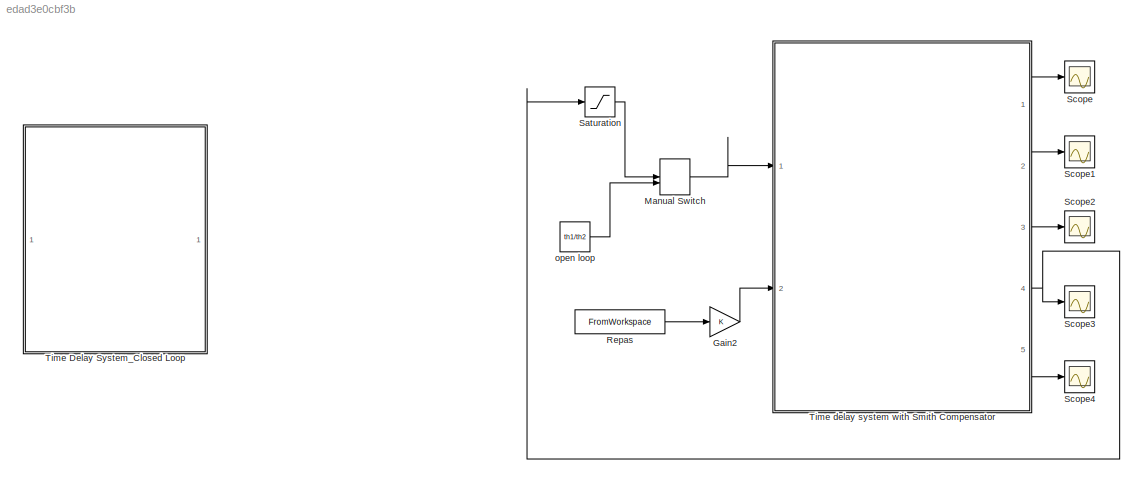
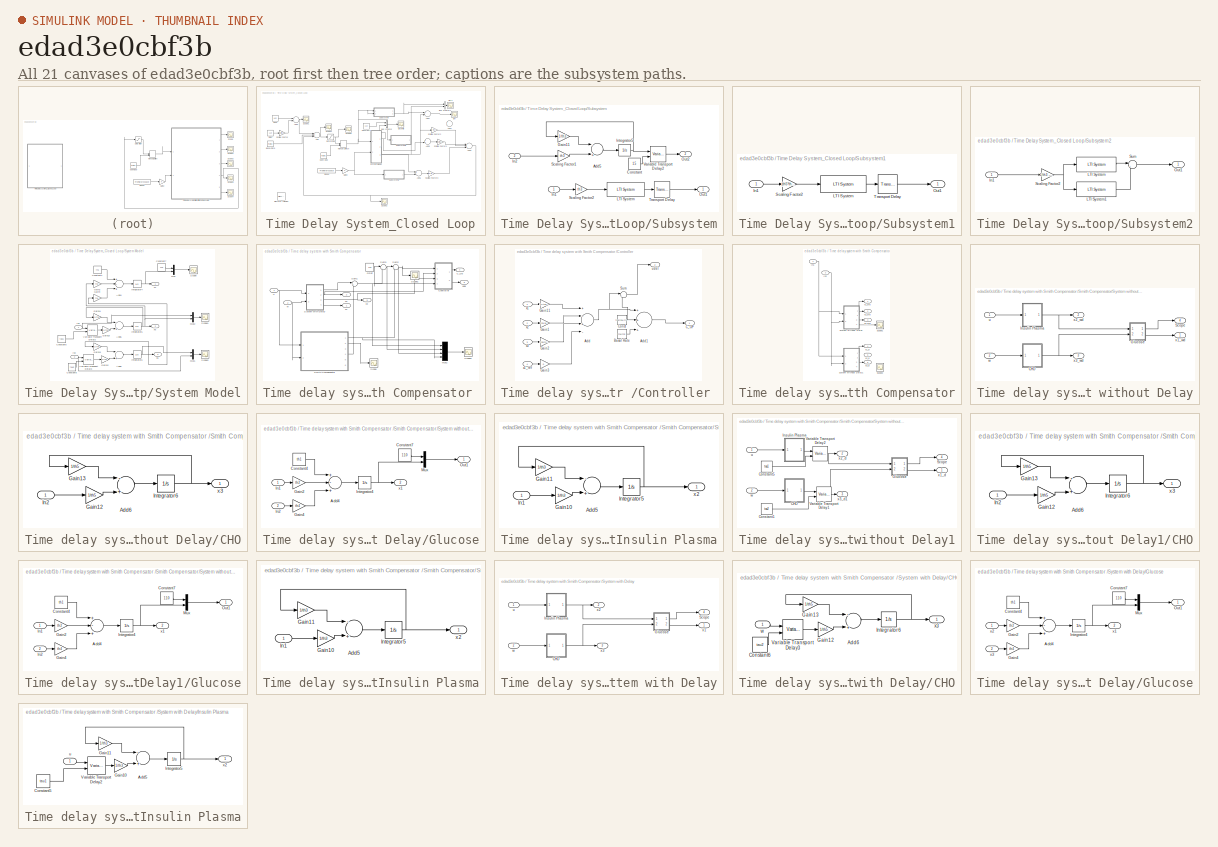
[diagram: thumbnail index - all 21 canvases of the model, root first then tree order]
MODEL slx_edad3e0cbf3b
KIND model
CONFIG AbsTol = auto
CONFIG EnableMultiTasking = off
CONFIG FixedStep = auto
CONFIG MaxStep = auto
CONFIG MinStep = auto
CONFIG RelTol = 1e-3
CONFIG SampleTimeConstraint = Unconstrained
CONFIG Solver = VariableStepAuto
CONFIG SolverName = VariableStepAuto
CONFIG StartTime = 0.0
CONFIG StopTime = 500
BLOCK [Gain] Gain2
  OutDataTypeStr = Inherit: Inherit via internal rule
  ParamDataTypeStr = Inherit: Inherit via internal rule
  SaturateOnIntegerOverflow = off
BLOCK [ManualSwitch] Manual Switch
BLOCK [FromWorkspace] Repas
  SampleTime = 0
  VariableName = [temps'  repas']
  ZeroCross = on
BLOCK [Saturate] Saturation
  InputPortMap = u0
  LowerLimit = 0
  Ports = [1, 1]
  UpperLimit = 2
BLOCK [Scope] Scope
  Floating = off
  NumInputPorts = 1
  Ports = [1]
  ScopeSpecificationString = Simulink.scopes.TimeScopeBlockCfg('CurrentConfiguration', extmgr.ConfigurationSet(extmgr.Configuration('Core','General UI',true),extmgr.Configuration('Core','Source UI',true),extmgr.Configuration('Sources','WiredSimulink',true,'DataLoggingVariableName','ScopeData4'),extmgr.Configuration('Visuals','Time Domain',true,'SerializedDisplays',{struct('MinYLimReal','97.19972','MaxYLimReal','225.20252','YL...<+1506ch>
BLOCK [Scope] Scope1
  Floating = off
  NumInputPorts = 1
  Ports = [1]
  ScopeSpecificationString = Simulink.scopes.TimeScopeBlockCfg('CurrentConfiguration', extmgr.ConfigurationSet(extmgr.Configuration('Core','General UI',true),extmgr.Configuration('Core','Source UI',true),extmgr.Configuration('Sources','WiredSimulink',true,'DataLoggingVariableName','ScopeData5'),extmgr.Configuration('Visuals','Time Domain',true,'SerializedDisplays',{struct('MinYLimReal','0.00904','MaxYLimReal','0.05105','YLabe...<+1400ch>
BLOCK [Scope] Scope2
  Floating = off
  NumInputPorts = 1
  Ports = [1]
  ScopeSpecificationString = Simulink.scopes.TimeScopeBlockCfg('CurrentConfiguration', extmgr.ConfigurationSet(extmgr.Configuration('Core','General UI',true),extmgr.Configuration('Core','Source UI',true),extmgr.Configuration('Sources','WiredSimulink',true,'DataLoggingVariableName','ScopeData6'),extmgr.Configuration('Visuals','Time Domain',true,'SerializedDisplays',{struct('MinYLimReal','-0.15474','MaxYLimReal','1.39269','YLab...<+1402ch>
BLOCK [Scope] Scope3
  Floating = off
  NumInputPorts = 1
  Ports = [1]
  ScopeSpecificationString = Simulink.scopes.TimeScopeBlockCfg('CurrentConfiguration', extmgr.ConfigurationSet(extmgr.Configuration('Core','General UI',true),extmgr.Configuration('Core','Source UI',true),extmgr.Configuration('Sources','WiredSimulink',true,'DataLoggingVariableName','ScopeData7'),extmgr.Configuration('Visuals','Time Domain',true,'SerializedDisplays',{struct('MinYLimReal','-0.09345','MaxYLimReal','0.17224','YLab...<+1446ch>
BLOCK [Scope] Scope4
  Floating = off
  NumInputPorts = 1
  Ports = [1]
  ScopeSpecificationString = Simulink.scopes.TimeScopeBlockCfg('CurrentConfiguration', extmgr.ConfigurationSet(extmgr.Configuration('Core','General UI',true),extmgr.Configuration('Core','Source UI',true),extmgr.Configuration('Sources','WiredSimulink',true,'DataLoggingVariableName','ScopeData8'),extmgr.Configuration('Visuals','Time Domain',true,'SerializedDisplays',{struct('MinYLimReal','-0.11045','MaxYLimReal','0.15524','YLab...<+1473ch>
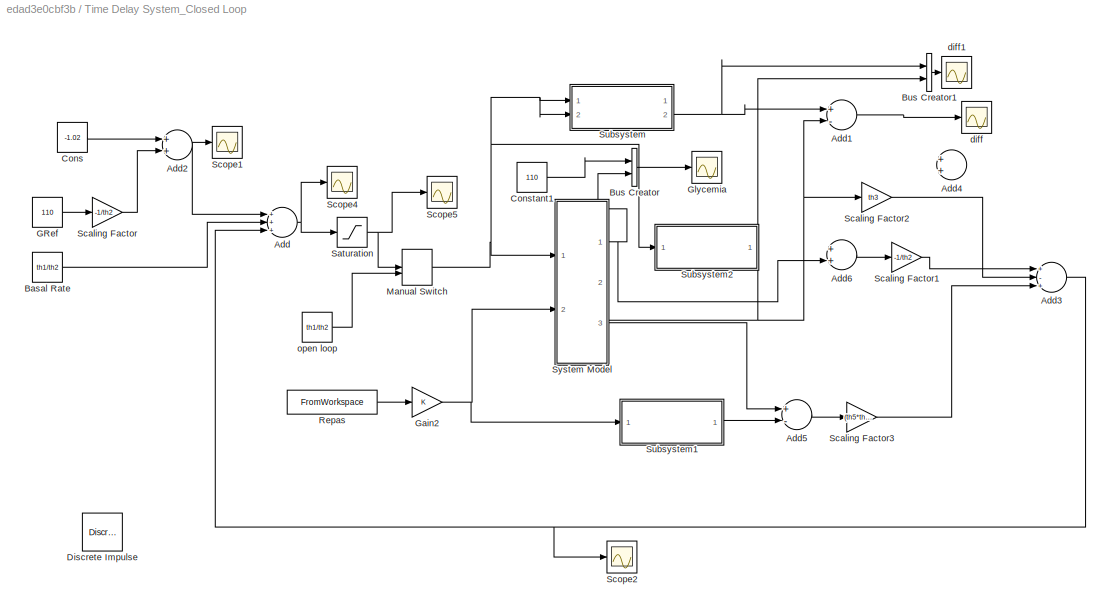
BLOCK [SubSystem] Time Delay System_Closed Loop
  Ports = []
  RequestExecContextInheritance = off
BLOCK [Sum] Time Delay System_Closed Loop/Add
  InputSameDT = off
  Inputs = +++
  OutDataTypeStr = Inherit: Inherit via internal rule
  Ports = [3, 1]
  SaturateOnIntegerOverflow = off
BLOCK [Sum] Time Delay System_Closed Loop/Add1
  InputSameDT = off
  Inputs = +-
  OutDataTypeStr = Inherit: Inherit via internal rule
  Ports = [2, 1]
  SaturateOnIntegerOverflow = off
BLOCK [Sum] Time Delay System_Closed Loop/Add2
  InputSameDT = off
  OutDataTypeStr = Inherit: Inherit via internal rule
  Ports = [2, 1]
  SaturateOnIntegerOverflow = off
BLOCK [Sum] Time Delay System_Closed Loop/Add3
  InputSameDT = off
  Inputs = +-+
  OutDataTypeStr = Inherit: Inherit via internal rule
  Ports = [3, 1]
  SaturateOnIntegerOverflow = off
BLOCK [Sum] Time Delay System_Closed Loop/Add4
  InputSameDT = off
  OutDataTypeStr = Inherit: Inherit via internal rule
  Ports = [2, 1]
  SaturateOnIntegerOverflow = off
BLOCK [Sum] Time Delay System_Closed Loop/Add5
  InputSameDT = off
  Inputs = +-
  OutDataTypeStr = Inherit: Inherit via internal rule
  Ports = [2, 1]
  SaturateOnIntegerOverflow = off
BLOCK [Sum] Time Delay System_Closed Loop/Add6
  InputSameDT = off
  OutDataTypeStr = Inherit: Inherit via internal rule
  Ports = [2, 1]
  SaturateOnIntegerOverflow = off
BLOCK [Constant] Time Delay System_Closed Loop/Basal Rate
  Value = th1/th2
  VectorParams1D = off
BLOCK [BusCreator] Time Delay System_Closed Loop/Bus Creator
  DisplayOption = bar
  InheritFromInputs = on
  Inputs = 2
  Ports = [2, 1]
BLOCK [BusCreator] Time Delay System_Closed Loop/Bus Creator1
  DisplayOption = bar
  InheritFromInputs = on
  Inputs = 2
  Ports = [2, 1]
BLOCK [Constant] Time Delay System_Closed Loop/Cons
  Value = -1.02
  VectorParams1D = off
BLOCK [Constant] Time Delay System_Closed Loop/Constant1
  Value = 110
BLOCK [Reference] Time Delay System_Closed Loop/Discrete Impulse  REF=dspsrcs4/Discrete 
Impulse
  Ports = [0, 1]
  SourceBlock = dspsrcs4/Discrete \nImpulse
  SourceProductBaseCode = DS
  SourceProductName = DSP System Toolbox
  SourceType = Discrete Impulse
BLOCK [Constant] Time Delay System_Closed Loop/GRef
  Value = 110
BLOCK [Gain] Time Delay System_Closed Loop/Gain2
  OutDataTypeStr = Inherit: Inherit via internal rule
  ParamDataTypeStr = Inherit: Inherit via internal rule
  SaturateOnIntegerOverflow = off
BLOCK [Scope] Time Delay System_Closed Loop/Glycemia
  Floating = off
  NumInputPorts = 1
  Ports = [1]
  ScopeSpecificationString = Simulink.scopes.TimeScopeBlockCfg('CurrentConfiguration', extmgr.ConfigurationSet(extmgr.Configuration('Core','General UI',true),extmgr.Configuration('Core','Source UI',true),extmgr.Configuration('Sources','WiredSimulink',true,'DataLoggingVariableName','ScopeData1'),extmgr.Configuration('Visuals','Time Domain',true,'SerializedDisplays',{struct('MinYLimReal','42.62347','MaxYLimReal','716.38879','YL...<+1618ch>
BLOCK [ManualSwitch] Time Delay System_Closed Loop/Manual Switch
BLOCK [FromWorkspace] Time Delay System_Closed Loop/Repas
  SampleTime = 0
  VariableName = [temps'  repas']
  ZeroCross = on
BLOCK [Saturate] Time Delay System_Closed Loop/Saturation
  InputPortMap = u0
  LowerLimit = 0
  Ports = [1, 1]
  UpperLimit = 2
BLOCK [Gain] Time Delay System_Closed Loop/Scaling Factor
  Gain = -1/th2
  OutDataTypeStr = Inherit: Inherit via internal rule
  ParamDataTypeStr = Inherit: Inherit via internal rule
  SaturateOnIntegerOverflow = off
BLOCK [Gain] Time Delay System_Closed Loop/Scaling Factor1
  Gain = -1/th2
  OutDataTypeStr = Inherit: Inherit via internal rule
  ParamDataTypeStr = Inherit: Inherit via internal rule
  SaturateOnIntegerOverflow = off
BLOCK [Gain] Time Delay System_Closed Loop/Scaling Factor2
  Gain = th3
  OutDataTypeStr = Inherit: Inherit via internal rule
  ParamDataTypeStr = Inherit: Inherit via internal rule
  SaturateOnIntegerOverflow = off
BLOCK [Gain] Time Delay System_Closed Loop/Scaling Factor3
  Gain = (th5*th4)/(th2)
  OutDataTypeStr = Inherit: Inherit via internal rule
  ParamDataTypeStr = Inherit: Inherit via internal rule
  SaturateOnIntegerOverflow = off
BLOCK [Scope] Time Delay System_Closed Loop/Scope1
  Floating = off
  NumInputPorts = 1
  Ports = [1]
  ScopeSpecificationString = Simulink.scopes.TimeScopeBlockCfg('CurrentConfiguration', extmgr.ConfigurationSet(extmgr.Configuration('Core','General UI',true),extmgr.Configuration('Core','Source UI',true),extmgr.Configuration('Sources','WiredSimulink',true,'DataLoggingVariableName','ScopeData1'),extmgr.Configuration('Visuals','Time Domain',true,'SerializedDisplays',{struct('MinYLimReal','-4.22','MaxYLimReal','-2.22','YLabelRea...<+1501ch>
BLOCK [Scope] Time Delay System_Closed Loop/Scope2
  Floating = off
  NumInputPorts = 1
  Ports = [1]
  ScopeSpecificationString = Simulink.scopes.TimeScopeBlockCfg('CurrentConfiguration', extmgr.ConfigurationSet(extmgr.Configuration('Core','General UI',true),extmgr.Configuration('Core','Source UI',true),extmgr.Configuration('Sources','WiredSimulink',true,'DataLoggingVariableName','ScopeData7'),extmgr.Configuration('Visuals','Time Domain',true,'SerializedDisplays',{struct('MinYLimReal','-14.39704','MaxYLimReal','-0.23157','YL...<+1484ch>
BLOCK [Scope] Time Delay System_Closed Loop/Scope4
  Floating = off
  NumInputPorts = 1
  Ports = [1]
  ScopeSpecificationString = Simulink.scopes.TimeScopeBlockCfg('CurrentConfiguration', extmgr.ConfigurationSet(extmgr.Configuration('Core','General UI',true),extmgr.Configuration('Core','Source UI',true),extmgr.Configuration('Sources','WiredSimulink',true,'DataLoggingVariableName','ScopeData2'),extmgr.Configuration('Visuals','Time Domain',true,'SerializedDisplays',{struct('MinYLimReal','-2.31544','MaxYLimReal','0.609','YLabel...<+1429ch>
BLOCK [Scope] Time Delay System_Closed Loop/Scope5
  Floating = off
  NumInputPorts = 1
  Ports = [1]
  ScopeSpecificationString = Simulink.scopes.TimeScopeBlockCfg('CurrentConfiguration', extmgr.ConfigurationSet(extmgr.Configuration('Core','General UI',true),extmgr.Configuration('Core','Source UI',true),extmgr.Configuration('Sources','WiredSimulink',true,'DataLoggingVariableName','ScopeData3'),extmgr.Configuration('Visuals','Time Domain',true,'SerializedDisplays',{struct('MinYLimReal','0.00699','MaxYLimReal','0.02699','YLabe...<+1438ch>
BLOCK [SubSystem] Time Delay System_Closed Loop/Subsystem
  Ports = [2, 2]
  RequestExecContextInheritance = off
BLOCK [Sum] Time Delay System_Closed Loop/Subsystem/Add5
  InputSameDT = off
  Inputs = -+
  OutDataTypeStr = Inherit: Inherit via internal rule
  Ports = [2, 1]
  SaturateOnIntegerOverflow = off
BLOCK [Constant] Time Delay System_Closed Loop/Subsystem/Constant
  Value = 15
BLOCK [Gain] Time Delay System_Closed Loop/Subsystem/Gain11
  Gain = 1/th3
  OutDataTypeStr = Inherit: Inherit via internal rule
  ParamDataTypeStr = Inherit: Inherit via internal rule
  SaturateOnIntegerOverflow = off
BLOCK [Inport] Time Delay System_Closed Loop/Subsystem/In1
  IconDisplay = Port number
BLOCK [Inport] Time Delay System_Closed Loop/Subsystem/In2
  IconDisplay = Port number
  Port = 2
BLOCK [Integrator] Time Delay System_Closed Loop/Subsystem/Integrator5
  InitialCondition = 0.017
  Ports = [1, 1]
  ZeroCross = off
BLOCK [Reference] Time Delay System_Closed Loop/Subsystem/LTI System  REF=cstblocks/LTI System
  Ports = [1, 1]
  SourceBlock = cstblocks/LTI System
  SourceProductBaseCode = CT
  SourceProductName = Control System Toolbox
  SourceType = LTI Block
BLOCK [Outport] Time Delay System_Closed Loop/Subsystem/Out1
  IconDisplay = Port number
BLOCK [Outport] Time Delay System_Closed Loop/Subsystem/Out2
  IconDisplay = Port number
  Port = 2
BLOCK [Gain] Time Delay System_Closed Loop/Subsystem/Scaling Factor1
  Gain = th3
  OutDataTypeStr = Inherit: Inherit via internal rule
  ParamDataTypeStr = Inherit: Inherit via internal rule
  SaturateOnIntegerOverflow = off
BLOCK [Gain] Time Delay System_Closed Loop/Subsystem/Scaling Factor2
  Gain = th3
  OutDataTypeStr = Inherit: Inherit via internal rule
  ParamDataTypeStr = Inherit: Inherit via internal rule
  SaturateOnIntegerOverflow = off
BLOCK [TransportDelay] Time Delay System_Closed Loop/Subsystem/Transport Delay
  DelayTime = 15
  Ports = [1, 1]
BLOCK [VariableTransportDelay] Time Delay System_Closed Loop/Subsystem/Variable Transport Delay2
  MaximumDelay = 20
  Ports = [2, 1]
  VariableDelayType = Variable transport delay
BLOCK [SubSystem] Time Delay System_Closed Loop/Subsystem1
  Ports = [1, 1]
  RequestExecContextInheritance = off
BLOCK [Inport] Time Delay System_Closed Loop/Subsystem1/In1
  IconDisplay = Port number
BLOCK [Reference] Time Delay System_Closed Loop/Subsystem1/LTI System  REF=cstblocks/LTI System
  Ports = [1, 1]
  SourceBlock = cstblocks/LTI System
  SourceProductBaseCode = CT
  SourceProductName = Control System Toolbox
  SourceType = LTI Block
BLOCK [Outport] Time Delay System_Closed Loop/Subsystem1/Out1
  IconDisplay = Port number
BLOCK [Gain] Time Delay System_Closed Loop/Subsystem1/Scaling Factor2
  Gain = (th5*th4)/(th2)
  OutDataTypeStr = Inherit: Inherit via internal rule
  ParamDataTypeStr = Inherit: Inherit via internal rule
  SaturateOnIntegerOverflow = off
BLOCK [TransportDelay] Time Delay System_Closed Loop/Subsystem1/Transport Delay
  DelayTime = 30
  Ports = [1, 1]
BLOCK [SubSystem] Time Delay System_Closed Loop/Subsystem2
  Ports = [1, 1]
  RequestExecContextInheritance = off
BLOCK [Inport] Time Delay System_Closed Loop/Subsystem2/In1
  IconDisplay = Port number
BLOCK [Reference] Time Delay System_Closed Loop/Subsystem2/LTI System  REF=cstblocks/LTI System
  Ports = [1, 1]
  SourceBlock = cstblocks/LTI System
  SourceProductBaseCode = CT
  SourceProductName = Control System Toolbox
  SourceType = LTI Block
BLOCK [Reference] Time Delay System_Closed Loop/Subsystem2/LTI System1  REF=cstblocks/LTI System
  Ports = [1, 1]
  SourceBlock = cstblocks/LTI System
  SourceProductBaseCode = CT
  SourceProductName = Control System Toolbox
  SourceType = LTI Block
BLOCK [Outport] Time Delay System_Closed Loop/Subsystem2/Out1
  IconDisplay = Port number
BLOCK [Gain] Time Delay System_Closed Loop/Subsystem2/Scaling Factor2
  Gain = 1/th3 - 1/th5
  OutDataTypeStr = Inherit: Inherit via internal rule
  ParamDataTypeStr = Inherit: Inherit via internal rule
  SaturateOnIntegerOverflow = off
BLOCK [Sum] Time Delay System_Closed Loop/Subsystem2/Sum
  IconShape = round
  InputSameDT = off
  Inputs = |+-
  OutDataTypeStr = Inherit: Inherit via internal rule
  Ports = [2, 1]
  SaturateOnIntegerOverflow = off
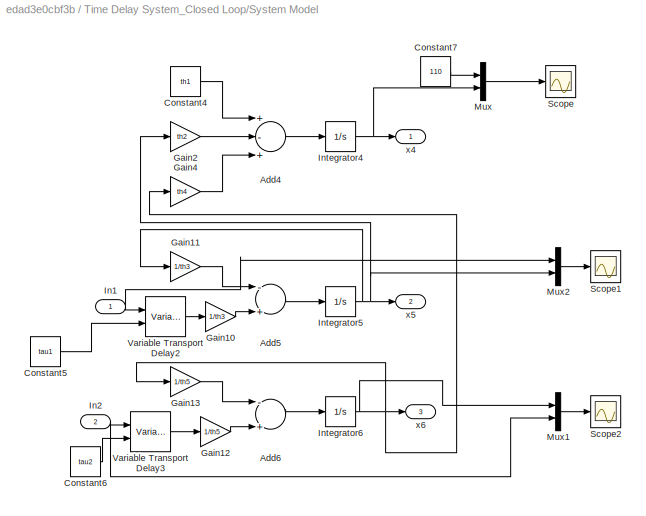
BLOCK [SubSystem] Time Delay System_Closed Loop/System Model
  Ports = [2, 3]
  RequestExecContextInheritance = off
BLOCK [Sum] Time Delay System_Closed Loop/System Model/Add4
  InputSameDT = off
  Inputs = +-+
  OutDataTypeStr = Inherit: Inherit via internal rule
  Ports = [3, 1]
  SaturateOnIntegerOverflow = off
BLOCK [Sum] Time Delay System_Closed Loop/System Model/Add5
  InputSameDT = off
  Inputs = -+
  OutDataTypeStr = Inherit: Inherit via internal rule
  Ports = [2, 1]
  SaturateOnIntegerOverflow = off
BLOCK [Sum] Time Delay System_Closed Loop/System Model/Add6
  InputSameDT = off
  Inputs = -+
  OutDataTypeStr = Inherit: Inherit via internal rule
  Ports = [2, 1]
  SaturateOnIntegerOverflow = off
BLOCK [Constant] Time Delay System_Closed Loop/System Model/Constant4
  Value = th1
  VectorParams1D = off
BLOCK [Constant] Time Delay System_Closed Loop/System Model/Constant5
  Value = tau1
BLOCK [Constant] Time Delay System_Closed Loop/System Model/Constant6
  Value = tau2
  VectorParams1D = off
BLOCK [Constant] Time Delay System_Closed Loop/System Model/Constant7
  Value = 110
  VectorParams1D = off
BLOCK [Gain] Time Delay System_Closed Loop/System Model/Gain10
  Gain = 1/th3
  OutDataTypeStr = Inherit: Inherit via internal rule
  ParamDataTypeStr = Inherit: Inherit via internal rule
  SaturateOnIntegerOverflow = off
BLOCK [Gain] Time Delay System_Closed Loop/System Model/Gain11
  Gain = 1/th3
  OutDataTypeStr = Inherit: Inherit via internal rule
  ParamDataTypeStr = Inherit: Inherit via internal rule
  SaturateOnIntegerOverflow = off
BLOCK [Gain] Time Delay System_Closed Loop/System Model/Gain12
  Gain = 1/th5
  OutDataTypeStr = Inherit: Inherit via internal rule
  ParamDataTypeStr = Inherit: Inherit via internal rule
  SaturateOnIntegerOverflow = off
BLOCK [Gain] Time Delay System_Closed Loop/System Model/Gain13
  Gain = 1/th5
  OutDataTypeStr = Inherit: Inherit via internal rule
  ParamDataTypeStr = Inherit: Inherit via internal rule
  SaturateOnIntegerOverflow = off
BLOCK [Gain] Time Delay System_Closed Loop/System Model/Gain2
  Gain = th2
  OutDataTypeStr = Inherit: Inherit via internal rule
  ParamDataTypeStr = Inherit: Inherit via internal rule
  SaturateOnIntegerOverflow = off
BLOCK [Gain] Time Delay System_Closed Loop/System Model/Gain4
  Gain = th4
  OutDataTypeStr = Inherit: Inherit via internal rule
  ParamDataTypeStr = Inherit: Inherit via internal rule
  SaturateOnIntegerOverflow = off
BLOCK [Inport] Time Delay System_Closed Loop/System Model/In1
  IconDisplay = Port number
BLOCK [Inport] Time Delay System_Closed Loop/System Model/In2
  IconDisplay = Port number
  Port = 2
BLOCK [Integrator] Time Delay System_Closed Loop/System Model/Integrator4
  InitialCondition = 110
  Ports = [1, 1]
  ZeroCross = off
BLOCK [Integrator] Time Delay System_Closed Loop/System Model/Integrator5
  InitialCondition = 0.017
  Ports = [1, 1]
  ZeroCross = off
BLOCK [Integrator] Time Delay System_Closed Loop/System Model/Integrator6
  Ports = [1, 1]
  ZeroCross = off
BLOCK [Mux] Time Delay System_Closed Loop/System Model/Mux
  DisplayOption = bar
  Inputs = 2
  Ports = [2, 1]
BLOCK [Mux] Time Delay System_Closed Loop/System Model/Mux1
  DisplayOption = bar
  Inputs = 2
  Ports = [2, 1]
BLOCK [Mux] Time Delay System_Closed Loop/System Model/Mux2
  DisplayOption = bar
  Inputs = 2
  Ports = [2, 1]
BLOCK [Scope] Time Delay System_Closed Loop/System Model/Scope
  Floating = off
  NumInputPorts = 1
  Ports = [1]
  ScopeSpecificationString = Simulink.scopes.TimeScopeBlockCfg('CurrentConfiguration', extmgr.ConfigurationSet(extmgr.Configuration('Core','General UI',true),extmgr.Configuration('Core','Source UI',true),extmgr.Configuration('Sources','WiredSimulink',true,'DataLoggingVariableName','ScopeData4'),extmgr.Configuration('Visuals','Time Domain',true,'SerializedDisplays',{struct('MinYLimReal','42.62347','MaxYLimReal','716.38879','YL...<+1442ch>
BLOCK [Scope] Time Delay System_Closed Loop/System Model/Scope1
  Floating = off
  NumInputPorts = 1
  Ports = [1]
  ScopeSpecificationString = Simulink.scopes.TimeScopeBlockCfg('CurrentConfiguration', extmgr.ConfigurationSet(extmgr.Configuration('Core','General UI',true),extmgr.Configuration('Core','Source UI',true),extmgr.Configuration('Sources','WiredSimulink',true,'DataLoggingVariableName','ScopeData5'),extmgr.Configuration('Visuals','Time Domain',true,'SerializedDisplays',{struct('MinYLimReal','-0.00212','MaxYLimReal','0.01913','YLab...<+1494ch>
BLOCK [Scope] Time Delay System_Closed Loop/System Model/Scope2
  Floating = off
  NumInputPorts = 1
  Ports = [1]
  ScopeSpecificationString = Simulink.scopes.TimeScopeBlockCfg('CurrentConfiguration', extmgr.ConfigurationSet(extmgr.Configuration('Core','General UI',true),extmgr.Configuration('Core','Source UI',true),extmgr.Configuration('Sources','WiredSimulink',true,'DataLoggingVariableName','ScopeData6'),extmgr.Configuration('Visuals','Time Domain',true,'SerializedDisplays',{struct('MinYLimReal','-1.00000','MaxYLimReal','1.00000','YLab...<+1401ch>
BLOCK [VariableTransportDelay] Time Delay System_Closed Loop/System Model/Variable Transport Delay2
  MaximumDelay = 15
  Ports = [2, 1]
  VariableDelayType = Variable transport delay
BLOCK [VariableTransportDelay] Time Delay System_Closed Loop/System Model/Variable Transport Delay3
  MaximumDelay = 30
  Ports = [2, 1]
  VariableDelayType = Variable transport delay
BLOCK [Outport] Time Delay System_Closed Loop/System Model/x4
  IconDisplay = Port number
BLOCK [Outport] Time Delay System_Closed Loop/System Model/x5
  IconDisplay = Port number
  Port = 2
BLOCK [Outport] Time Delay System_Closed Loop/System Model/x6
  IconDisplay = Port number
  Port = 3
BLOCK [Scope] Time Delay System_Closed Loop/diff
  Floating = off
  NumInputPorts = 1
  Ports = [1]
  ScopeSpecificationString = Simulink.scopes.TimeScopeBlockCfg('CurrentConfiguration', extmgr.ConfigurationSet(extmgr.Configuration('Core','General UI',true),extmgr.Configuration('Core','Source UI',true),extmgr.Configuration('Sources','WiredSimulink',true,'DataLoggingVariableName','ScopeData3'),extmgr.Configuration('Visuals','Time Domain',true,'SerializedDisplays',{struct('MinYLimReal','-0.00629','MaxYLimReal','0.01959','YLab...<+1562ch>
BLOCK [Scope] Time Delay System_Closed Loop/diff1
  Floating = off
  NumInputPorts = 1
  Ports = [1]
  ScopeSpecificationString = Simulink.scopes.TimeScopeBlockCfg('CurrentConfiguration', extmgr.ConfigurationSet(extmgr.Configuration('Core','General UI',true),extmgr.Configuration('Core','Source UI',true),extmgr.Configuration('Sources','WiredSimulink',true,'DataLoggingVariableName','ScopeData1'),extmgr.Configuration('Visuals','Time Domain',true,'SerializedDisplays',{struct('MinYLimReal','-0.00629','MaxYLimReal','0.01959','YLab...<+1579ch>
BLOCK [Constant] Time Delay System_Closed Loop/open loop
  Value = th1/th2
BLOCK [SubSystem] Time delay system with Smith Compensator 
  Ports = [2, 5]
  RequestExecContextInheritance = off
BLOCK [Outport] Time delay system with Smith Compensator /C_Op
  IconDisplay = Port number
  Port = 4
BLOCK [SubSystem] Time delay system with Smith Compensator /Controller 
  Ports = [4, 2]
  RequestExecContextInheritance = off
BLOCK [Sum] Time delay system with Smith Compensator /Controller /Add
  InputSameDT = off
  Inputs = +-+-
  OutDataTypeStr = Inherit: Inherit via internal rule
  Ports = [4, 1]
  SaturateOnIntegerOverflow = off
BLOCK [Sum] Time delay system with Smith Compensator /Controller /Add1
  InputSameDT = off
  Inputs = +++
  OutDataTypeStr = Inherit: Inherit via internal rule
  Ports = [3, 1]
  SaturateOnIntegerOverflow = off
BLOCK [Constant] Time delay system with Smith Compensator /Controller /Basal Rate
  Value = th1/th2
  VectorParams1D = off
BLOCK [Outport] Time delay system with Smith Compensator /Controller /C_OP
  IconDisplay = Port number
BLOCK [Constant] Time delay system with Smith Compensator /Controller /Const
  Value = th3*th1/(th2*15)
  VectorParams1D = off
BLOCK [Gain] Time delay system with Smith Compensator /Controller /Gain1
  Gain = th3/15
  OutDataTypeStr = Inherit: Inherit via internal rule
  ParamDataTypeStr = Inherit: Inherit via internal rule
  SaturateOnIntegerOverflow = off
BLOCK [Gain] Time delay system with Smith Compensator /Controller /Gain11
  Gain = -1/(th2*45)
  OutDataTypeStr = Inherit: Inherit via internal rule
  ParamDataTypeStr = Inherit: Inherit via internal rule
  SaturateOnIntegerOverflow = off
BLOCK [Gain] Time delay system with Smith Compensator /Controller /Gain2
  Gain = (th5*th4)/(th2*30)
  OutDataTypeStr = Inherit: Inherit via internal rule
  ParamDataTypeStr = Inherit: Inherit via internal rule
  SaturateOnIntegerOverflow = off
BLOCK [Gain] Time delay system with Smith Compensator /Controller /Gain3
  Gain = 0
  OutDataTypeStr = Inherit: Inherit via internal rule
  ParamDataTypeStr = Inherit: Inherit via internal rule
  SaturateOnIntegerOverflow = off
BLOCK [Sum] Time delay system with Smith Compensator /Controller /Sum
  IconShape = round
  InputSameDT = off
  Inputs = |++
  OutDataTypeStr = Inherit: Inherit via internal rule
  Ports = [2, 1]
  SaturateOnIntegerOverflow = off
BLOCK [Outport] Time delay system with Smith Compensator /Controller /udel
  IconDisplay = Port number
  Port = 2
BLOCK [Inport] Time delay system with Smith Compensator /Controller /x1
  IconDisplay = Port number
BLOCK [Inport] Time delay system with Smith Compensator /Controller /x1_ref
  IconDisplay = Port number
  Port = 4
BLOCK [Inport] Time delay system with Smith Compensator /Controller /x2
  IconDisplay = Port number
  Port = 2
BLOCK [Inport] Time delay system with Smith Compensator /Controller /x3
  IconDisplay = Port number
  Port = 3
BLOCK [Constant] Time delay system with Smith Compensator /GRef
  Value = 110
BLOCK [Mux] Time delay system with Smith Compensator /Mux2
  DisplayOption = bar
  Ports = [4, 1]
BLOCK [Scope] Time delay system with Smith Compensator /Scope
  Floating = off
  NumInputPorts = 1
  Ports = [1]
  ScopeSpecificationString = Simulink.scopes.TimeScopeBlockCfg('CurrentConfiguration', extmgr.ConfigurationSet(extmgr.Configuration('Core','General UI',true),extmgr.Configuration('Core','Source UI',true),extmgr.Configuration('Sources','WiredSimulink',true,'DataLoggingVariableName','ScopeData1'),extmgr.Configuration('Visuals','Time Domain',true,'SerializedDisplays',{struct('MinYLimReal','0.00052','MaxYLimReal','0.01883','YLabe...<+1420ch>
BLOCK [Scope] Time delay system with Smith Compensator /Scope1
  Floating = off
  NumInputPorts = 1
  Ports = [1]
  ScopeSpecificationString = Simulink.scopes.TimeScopeBlockCfg('CurrentConfiguration', extmgr.ConfigurationSet(extmgr.Configuration('Core','General UI',true),extmgr.Configuration('Core','Source UI',true),extmgr.Configuration('Sources','WiredSimulink',true,'DataLoggingVariableName','ScopeData9'),extmgr.Configuration('Visuals','Time Domain',true,'SerializedDisplays',{struct('MinYLimReal','108.58985','MaxYLimReal','122.69131','Y...<+1538ch>
BLOCK [Scope] Time delay system with Smith Compensator /Scope2
  Floating = off
  NumInputPorts = 1
  Ports = [1]
  ScopeSpecificationString = Simulink.scopes.TimeScopeBlockCfg('CurrentConfiguration', extmgr.ConfigurationSet(extmgr.Configuration('Core','General UI',true),extmgr.Configuration('Core','Source UI',true),extmgr.Configuration('Sources','WiredSimulink',true,'DataLoggingVariableName','ScopeData10'),extmgr.Configuration('Visuals','Time Domain',true,'SerializedDisplays',{struct('MinYLimReal','-481.17556','MaxYLimReal','591.25535',...<+1575ch>
BLOCK [SubSystem] Time delay system with Smith Compensator /Smith Compensator
  Ports = [2, 6]
  RequestExecContextInheritance = off
BLOCK [Inport] Time delay system with Smith Compensator /Smith Compensator/In1
  IconDisplay = Port number
BLOCK [Inport] Time delay system with Smith Compensator /Smith Compensator/In2
  IconDisplay = Port number
  Port = 2
BLOCK [Scope] Time delay system with Smith Compensator /Smith Compensator/Scope1
  Floating = off
  NumInputPorts = 1
  Ports = [1]
  ScopeSpecificationString = Simulink.scopes.TimeScopeBlockCfg('CurrentConfiguration', extmgr.ConfigurationSet(extmgr.Configuration('Core','General UI',true),extmgr.Configuration('Core','Source UI',true),extmgr.Configuration('Sources','WiredSimulink',true,'DataLoggingVariableName','ScopeData2'),extmgr.Configuration('Visuals','Time Domain',true,'SerializedDisplays',{struct('MinYLimReal','42.62347','MaxYLimReal','716.38879','YL...<+1442ch>
BLOCK [Scope] Time delay system with Smith Compensator /Smith Compensator/Scope2
  Floating = off
  NumInputPorts = 1
  Ports = [1]
  ScopeSpecificationString = Simulink.scopes.TimeScopeBlockCfg('CurrentConfiguration', extmgr.ConfigurationSet(extmgr.Configuration('Core','General UI',true),extmgr.Configuration('Core','Source UI',true),extmgr.Configuration('Sources','WiredSimulink',true,'DataLoggingVariableName','ScopeData3'),extmgr.Configuration('Visuals','Time Domain',true,'SerializedDisplays',{struct('MinYLimReal','42.62347','MaxYLimReal','716.38879','YL...<+1442ch>
BLOCK [SubSystem] Time delay system with Smith Compensator /Smith Compensator/System without Delay
  Ports = [2, 4]
  RequestExecContextInheritance = off
BLOCK [SubSystem] Time delay system with Smith Compensator /Smith Compensator/System without Delay/CHO
  Ports = [1, 1]
  RequestExecContextInheritance = off
BLOCK [Sum] Time delay system with Smith Compensator /Smith Compensator/System without Delay/CHO/Add6
  InputSameDT = off
  Inputs = -+
  OutDataTypeStr = Inherit: Inherit via internal rule
  Ports = [2, 1]
  SaturateOnIntegerOverflow = off
BLOCK [Gain] Time delay system with Smith Compensator /Smith Compensator/System without Delay/CHO/Gain12
  Gain = 1/th5
  OutDataTypeStr = Inherit: Inherit via internal rule
  ParamDataTypeStr = Inherit: Inherit via internal rule
  SaturateOnIntegerOverflow = off
BLOCK [Gain] Time delay system with Smith Compensator /Smith Compensator/System without Delay/CHO/Gain13
  Gain = 1/th5
  OutDataTypeStr = Inherit: Inherit via internal rule
  ParamDataTypeStr = Inherit: Inherit via internal rule
  SaturateOnIntegerOverflow = off
BLOCK [Inport] Time delay system with Smith Compensator /Smith Compensator/System without Delay/CHO/In2
  IconDisplay = Port number
BLOCK [Integrator] Time delay system with Smith Compensator /Smith Compensator/System without Delay/CHO/Integrator6
  Ports = [1, 1]
  ZeroCross = off
BLOCK [Outport] Time delay system with Smith Compensator /Smith Compensator/System without Delay/CHO/x3
  IconDisplay = Port number
BLOCK [SubSystem] Time delay system with Smith Compensator /Smith Compensator/System without Delay/Glucose
  Ports = [2, 2]
  RequestExecContextInheritance = off
BLOCK [Sum] Time delay system with Smith Compensator /Smith Compensator/System without Delay/Glucose/Add4
  InputSameDT = off
  Inputs = +-+
  OutDataTypeStr = Inherit: Inherit via internal rule
  Ports = [3, 1]
  SaturateOnIntegerOverflow = off
BLOCK [Constant] Time delay system with Smith Compensator /Smith Compensator/System without Delay/Glucose/Constant4
  Value = th1
  VectorParams1D = off
BLOCK [Constant] Time delay system with Smith Compensator /Smith Compensator/System without Delay/Glucose/Constant7
  Value = 110
  VectorParams1D = off
BLOCK [Gain] Time delay system with Smith Compensator /Smith Compensator/System without Delay/Glucose/Gain2
  Gain = th2
  OutDataTypeStr = Inherit: Inherit via internal rule
  ParamDataTypeStr = Inherit: Inherit via internal rule
  SaturateOnIntegerOverflow = off
BLOCK [Gain] Time delay system with Smith Compensator /Smith Compensator/System without Delay/Glucose/Gain4
  Gain = th4
  OutDataTypeStr = Inherit: Inherit via internal rule
  ParamDataTypeStr = Inherit: Inherit via internal rule
  SaturateOnIntegerOverflow = off
BLOCK [Inport] Time delay system with Smith Compensator /Smith Compensator/System without Delay/Glucose/In1
  IconDisplay = Port number
BLOCK [Inport] Time delay system with Smith Compensator /Smith Compensator/System without Delay/Glucose/In2
  IconDisplay = Port number
  Port = 2
BLOCK [Integrator] Time delay system with Smith Compensator /Smith Compensator/System without Delay/Glucose/Integrator4
  InitialCondition = 110
  Ports = [1, 1]
  ZeroCross = off
BLOCK [Mux] Time delay system with Smith Compensator /Smith Compensator/System without Delay/Glucose/Mux
  DisplayOption = bar
  Inputs = 2
  Ports = [2, 1]
BLOCK [Outport] Time delay system with Smith Compensator /Smith Compensator/System without Delay/Glucose/Out1
  IconDisplay = Port number
BLOCK [Outport] Time delay system with Smith Compensator /Smith Compensator/System without Delay/Glucose/x1
  IconDisplay = Port number
  Port = 2
BLOCK [SubSystem] Time delay system with Smith Compensator /Smith Compensator/System without Delay/Insulin Plasma
  Ports = [1, 1]
  RequestExecContextInheritance = off
BLOCK [Sum] Time delay system with Smith Compensator /Smith Compensator/System without Delay/Insulin Plasma/Add5
  InputSameDT = off
  Inputs = -+
  OutDataTypeStr = Inherit: Inherit via internal rule
  Ports = [2, 1]
  SaturateOnIntegerOverflow = off
BLOCK [Gain] Time delay system with Smith Compensator /Smith Compensator/System without Delay/Insulin Plasma/Gain10
  Gain = 1/th3
  OutDataTypeStr = Inherit: Inherit via internal rule
  ParamDataTypeStr = Inherit: Inherit via internal rule
  SaturateOnIntegerOverflow = off
BLOCK [Gain] Time delay system with Smith Compensator /Smith Compensator/System without Delay/Insulin Plasma/Gain11
  Gain = 1/th3
  OutDataTypeStr = Inherit: Inherit via internal rule
  ParamDataTypeStr = Inherit: Inherit via internal rule
  SaturateOnIntegerOverflow = off
BLOCK [Inport] Time delay system with Smith Compensator /Smith Compensator/System without Delay/Insulin Plasma/In1
  IconDisplay = Port number
BLOCK [Integrator] Time delay system with Smith Compensator /Smith Compensator/System without Delay/Insulin Plasma/Integrator5
  InitialCondition = 0.017
  Ports = [1, 1]
  ZeroCross = off
BLOCK [Outport] Time delay system with Smith Compensator /Smith Compensator/System without Delay/Insulin Plasma/x2
  IconDisplay = Port number
BLOCK [Outport] Time delay system with Smith Compensator /Smith Compensator/System without Delay/Scope
  IconDisplay = Port number
  Port = 4
BLOCK [Inport] Time delay system with Smith Compensator /Smith Compensator/System without Delay/u
  IconDisplay = Port number
BLOCK [Inport] Time delay system with Smith Compensator /Smith Compensator/System without Delay/w
  IconDisplay = Port number
  Port = 2
BLOCK [Outport] Time delay system with Smith Compensator /Smith Compensator/System without Delay/x1_wd
  IconDisplay = Port number
BLOCK [Outport] Time delay system with Smith Compensator /Smith Compensator/System without Delay/x2_wd
  IconDisplay = Port number
  Port = 2
BLOCK [Outport] Time delay system with Smith Compensator /Smith Compensator/System without Delay/x3_wd
  IconDisplay = Port number
  Port = 3
BLOCK [SubSystem] Time delay system with Smith Compensator /Smith Compensator/System without Delay1
  Ports = [2, 4]
  RequestExecContextInheritance = off
BLOCK [SubSystem] Time delay system with Smith Compensator /Smith Compensator/System without Delay1/CHO
  Ports = [1, 1]
  RequestExecContextInheritance = off
BLOCK [Sum] Time delay system with Smith Compensator /Smith Compensator/System without Delay1/CHO/Add6
  InputSameDT = off
  Inputs = -+
  OutDataTypeStr = Inherit: Inherit via internal rule
  Ports = [2, 1]
  SaturateOnIntegerOverflow = off
BLOCK [Gain] Time delay system with Smith Compensator /Smith Compensator/System without Delay1/CHO/Gain12
  Gain = 1/th5
  OutDataTypeStr = Inherit: Inherit via internal rule
  ParamDataTypeStr = Inherit: Inherit via internal rule
  SaturateOnIntegerOverflow = off
BLOCK [Gain] Time delay system with Smith Compensator /Smith Compensator/System without Delay1/CHO/Gain13
  Gain = 1/th5
  OutDataTypeStr = Inherit: Inherit via internal rule
  ParamDataTypeStr = Inherit: Inherit via internal rule
  SaturateOnIntegerOverflow = off
BLOCK [Inport] Time delay system with Smith Compensator /Smith Compensator/System without Delay1/CHO/In2
  IconDisplay = Port number
BLOCK [Integrator] Time delay system with Smith Compensator /Smith Compensator/System without Delay1/CHO/Integrator6
  Ports = [1, 1]
  ZeroCross = off
BLOCK [Outport] Time delay system with Smith Compensator /Smith Compensator/System without Delay1/CHO/x3
  IconDisplay = Port number
BLOCK [Constant] Time delay system with Smith Compensator /Smith Compensator/System without Delay1/Constant1
  Value = tau2
BLOCK [Constant] Time delay system with Smith Compensator /Smith Compensator/System without Delay1/Constant5
  Value = tau1
BLOCK [SubSystem] Time delay system with Smith Compensator /Smith Compensator/System without Delay1/Glucose
  Ports = [2, 2]
  RequestExecContextInheritance = off
BLOCK [Sum] Time delay system with Smith Compensator /Smith Compensator/System without Delay1/Glucose/Add4
  InputSameDT = off
  Inputs = +-+
  OutDataTypeStr = Inherit: Inherit via internal rule
  Ports = [3, 1]
  SaturateOnIntegerOverflow = off
BLOCK [Constant] Time delay system with Smith Compensator /Smith Compensator/System without Delay1/Glucose/Constant4
  Value = th1
  VectorParams1D = off
BLOCK [Constant] Time delay system with Smith Compensator /Smith Compensator/System without Delay1/Glucose/Constant7
  Value = 110
  VectorParams1D = off
BLOCK [Gain] Time delay system with Smith Compensator /Smith Compensator/System without Delay1/Glucose/Gain2
  Gain = th2
  OutDataTypeStr = Inherit: Inherit via internal rule
  ParamDataTypeStr = Inherit: Inherit via internal rule
  SaturateOnIntegerOverflow = off
BLOCK [Gain] Time delay system with Smith Compensator /Smith Compensator/System without Delay1/Glucose/Gain4
  Gain = th4
  OutDataTypeStr = Inherit: Inherit via internal rule
  ParamDataTypeStr = Inherit: Inherit via internal rule
  SaturateOnIntegerOverflow = off
BLOCK [Inport] Time delay system with Smith Compensator /Smith Compensator/System without Delay1/Glucose/In1
  IconDisplay = Port number
BLOCK [Inport] Time delay system with Smith Compensator /Smith Compensator/System without Delay1/Glucose/In2
  IconDisplay = Port number
  Port = 2
BLOCK [Integrator] Time delay system with Smith Compensator /Smith Compensator/System without Delay1/Glucose/Integrator4
  InitialCondition = 110
  Ports = [1, 1]
  ZeroCross = off
BLOCK [Mux] Time delay system with Smith Compensator /Smith Compensator/System without Delay1/Glucose/Mux
  DisplayOption = bar
  Inputs = 2
  Ports = [2, 1]
BLOCK [Outport] Time delay system with Smith Compensator /Smith Compensator/System without Delay1/Glucose/Out1
  IconDisplay = Port number
BLOCK [Outport] Time delay system with Smith Compensator /Smith Compensator/System without Delay1/Glucose/x1
  IconDisplay = Port number
  Port = 2
BLOCK [SubSystem] Time delay system with Smith Compensator /Smith Compensator/System without Delay1/Insulin Plasma
  Ports = [1, 1]
  RequestExecContextInheritance = off
BLOCK [Sum] Time delay system with Smith Compensator /Smith Compensator/System without Delay1/Insulin Plasma/Add5
  InputSameDT = off
  Inputs = -+
  OutDataTypeStr = Inherit: Inherit via internal rule
  Ports = [2, 1]
  SaturateOnIntegerOverflow = off
BLOCK [Gain] Time delay system with Smith Compensator /Smith Compensator/System without Delay1/Insulin Plasma/Gain10
  Gain = 1/th3
  OutDataTypeStr = Inherit: Inherit via internal rule
  ParamDataTypeStr = Inherit: Inherit via internal rule
  SaturateOnIntegerOverflow = off
BLOCK [Gain] Time delay system with Smith Compensator /Smith Compensator/System without Delay1/Insulin Plasma/Gain11
  Gain = 1/th3
  OutDataTypeStr = Inherit: Inherit via internal rule
  ParamDataTypeStr = Inherit: Inherit via internal rule
  SaturateOnIntegerOverflow = off
BLOCK [Inport] Time delay system with Smith Compensator /Smith Compensator/System without Delay1/Insulin Plasma/In1
  IconDisplay = Port number
BLOCK [Integrator] Time delay system with Smith Compensator /Smith Compensator/System without Delay1/Insulin Plasma/Integrator5
  InitialCondition = 0.017
  Ports = [1, 1]
  ZeroCross = off
BLOCK [Outport] Time delay system with Smith Compensator /Smith Compensator/System without Delay1/Insulin Plasma/x2
  IconDisplay = Port number
BLOCK [Outport] Time delay system with Smith Compensator /Smith Compensator/System without Delay1/Scope
  IconDisplay = Port number
  Port = 4
BLOCK [VariableTransportDelay] Time delay system with Smith Compensator /Smith Compensator/System without Delay1/Variable Transport Delay1
  MaximumDelay = 30
  Ports = [2, 1]
  VariableDelayType = Variable transport delay
BLOCK [VariableTransportDelay] Time delay system with Smith Compensator /Smith Compensator/System without Delay1/Variable Transport Delay2
  MaximumDelay = 20
  Ports = [2, 1]
  VariableDelayType = Variable transport delay
BLOCK [Inport] Time delay system with Smith Compensator /Smith Compensator/System without Delay1/u
  IconDisplay = Port number
BLOCK [Inport] Time delay system with Smith Compensator /Smith Compensator/System without Delay1/w
  IconDisplay = Port number
  Port = 2
BLOCK [Outport] Time delay system with Smith Compensator /Smith Compensator/System without Delay1/x1_d
  IconDisplay = Port number
BLOCK [Outport] Time delay system with Smith Compensator /Smith Compensator/System without Delay1/x2_d
  IconDisplay = Port number
  Port = 2
BLOCK [Outport] Time delay system with Smith Compensator /Smith Compensator/System without Delay1/x3_d1
  IconDisplay = Port number
  Port = 3
BLOCK [Outport] Time delay system with Smith Compensator /Smith Compensator/x1_d
  IconDisplay = Port number
  Port = 4
BLOCK [Outport] Time delay system with Smith Compensator /Smith Compensator/x1_wd
  IconDisplay = Port number
BLOCK [Outport] Time delay system with Smith Compensator /Smith Compensator/x2_d
  IconDisplay = Port number
  Port = 5
BLOCK [Outport] Time delay system with Smith Compensator /Smith Compensator/x2_wd
  IconDisplay = Port number
  Port = 2
BLOCK [Outport] Time delay system with Smith Compensator /Smith Compensator/x3_d
  IconDisplay = Port number
  Port = 6
BLOCK [Outport] Time delay system with Smith Compensator /Smith Compensator/x3_wd
  IconDisplay = Port number
  Port = 3
BLOCK [Sum] Time delay system with Smith Compensator /Sum1
  IconShape = round
  InputSameDT = off
  Inputs = |+-
  OutDataTypeStr = Inherit: Inherit via internal rule
  Ports = [2, 1]
  SaturateOnIntegerOverflow = off
BLOCK [Sum] Time delay system with Smith Compensator /Sum2
  IconShape = round
  InputSameDT = off
  Inputs = |+-
  OutDataTypeStr = Inherit: Inherit via internal rule
  Ports = [2, 1]
  SaturateOnIntegerOverflow = off
BLOCK [Sum] Time delay system with Smith Compensator /Sum3
  IconShape = round
  InputSameDT = off
  Inputs = |+-
  OutDataTypeStr = Inherit: Inherit via internal rule
  Ports = [2, 1]
  SaturateOnIntegerOverflow = off
BLOCK [SubSystem] Time delay system with Smith Compensator /System with Delay
  Ports = [2, 4]
  RequestExecContextInheritance = off
BLOCK [SubSystem] Time delay system with Smith Compensator /System with Delay/CHO
  Ports = [1, 1]
  RequestExecContextInheritance = off
BLOCK [Sum] Time delay system with Smith Compensator /System with Delay/CHO/Add6
  InputSameDT = off
  Inputs = -+
  OutDataTypeStr = Inherit: Inherit via internal rule
  Ports = [2, 1]
  SaturateOnIntegerOverflow = off
BLOCK [Constant] Time delay system with Smith Compensator /System with Delay/CHO/Constant6
  Value = tau2
  VectorParams1D = off
BLOCK [Gain] Time delay system with Smith Compensator /System with Delay/CHO/Gain12
  Gain = 1/th5
  OutDataTypeStr = Inherit: Inherit via internal rule
  ParamDataTypeStr = Inherit: Inherit via internal rule
  SaturateOnIntegerOverflow = off
BLOCK [Gain] Time delay system with Smith Compensator /System with Delay/CHO/Gain13
  Gain = 1/th5
  OutDataTypeStr = Inherit: Inherit via internal rule
  ParamDataTypeStr = Inherit: Inherit via internal rule
  SaturateOnIntegerOverflow = off
BLOCK [Integrator] Time delay system with Smith Compensator /System with Delay/CHO/Integrator6
  Ports = [1, 1]
  ZeroCross = off
BLOCK [VariableTransportDelay] Time delay system with Smith Compensator /System with Delay/CHO/Variable Transport Delay3
  MaximumDelay = 30
  Ports = [2, 1]
  VariableDelayType = Variable transport delay
BLOCK [Inport] Time delay system with Smith Compensator /System with Delay/CHO/w
  IconDisplay = Port number
BLOCK [Outport] Time delay system with Smith Compensator /System with Delay/CHO/x3
  IconDisplay = Port number
BLOCK [SubSystem] Time delay system with Smith Compensator /System with Delay/Glucose
  Ports = [2, 2]
  RequestExecContextInheritance = off
BLOCK [Sum] Time delay system with Smith Compensator /System with Delay/Glucose/Add4
  InputSameDT = off
  Inputs = +-+
  OutDataTypeStr = Inherit: Inherit via internal rule
  Ports = [3, 1]
  SaturateOnIntegerOverflow = off
BLOCK [Constant] Time delay system with Smith Compensator /System with Delay/Glucose/Constant4
  Value = th1
  VectorParams1D = off
BLOCK [Constant] Time delay system with Smith Compensator /System with Delay/Glucose/Constant7
  Value = 110
  VectorParams1D = off
BLOCK [Gain] Time delay system with Smith Compensator /System with Delay/Glucose/Gain2
  Gain = th2
  OutDataTypeStr = Inherit: Inherit via internal rule
  ParamDataTypeStr = Inherit: Inherit via internal rule
  SaturateOnIntegerOverflow = off
BLOCK [Gain] Time delay system with Smith Compensator /System with Delay/Glucose/Gain4
  Gain = th4
  OutDataTypeStr = Inherit: Inherit via internal rule
  ParamDataTypeStr = Inherit: Inherit via internal rule
  SaturateOnIntegerOverflow = off
BLOCK [Integrator] Time delay system with Smith Compensator /System with Delay/Glucose/Integrator4
  InitialCondition = 110
  Ports = [1, 1]
  ZeroCross = off
BLOCK [Mux] Time delay system with Smith Compensator /System with Delay/Glucose/Mux
  DisplayOption = bar
  Inputs = 2
  Ports = [2, 1]
BLOCK [Outport] Time delay system with Smith Compensator /System with Delay/Glucose/Out1
  IconDisplay = Port number
BLOCK [Outport] Time delay system with Smith Compensator /System with Delay/Glucose/x1
  IconDisplay = Port number
  Port = 2
BLOCK [Inport] Time delay system with Smith Compensator /System with Delay/Glucose/x2
  IconDisplay = Port number
BLOCK [Inport] Time delay system with Smith Compensator /System with Delay/Glucose/x3
  IconDisplay = Port number
  Port = 2
BLOCK [SubSystem] Time delay system with Smith Compensator /System with Delay/Insulin Plasma
  Ports = [1, 1]
  RequestExecContextInheritance = off
BLOCK [Sum] Time delay system with Smith Compensator /System with Delay/Insulin Plasma/Add5
  InputSameDT = off
  Inputs = -+
  OutDataTypeStr = Inherit: Inherit via internal rule
  Ports = [2, 1]
  SaturateOnIntegerOverflow = off
BLOCK [Constant] Time delay system with Smith Compensator /System with Delay/Insulin Plasma/Constant5
  Value = tau1
BLOCK [Gain] Time delay system with Smith Compensator /System with Delay/Insulin Plasma/Gain10
  Gain = 1/th3
  OutDataTypeStr = Inherit: Inherit via internal rule
  ParamDataTypeStr = Inherit: Inherit via internal rule
  SaturateOnIntegerOverflow = off
BLOCK [Gain] Time delay system with Smith Compensator /System with Delay/Insulin Plasma/Gain11
  Gain = 1/th3
  OutDataTypeStr = Inherit: Inherit via internal rule
  ParamDataTypeStr = Inherit: Inherit via internal rule
  SaturateOnIntegerOverflow = off
BLOCK [Integrator] Time delay system with Smith Compensator /System with Delay/Insulin Plasma/Integrator5
  InitialCondition = 0.017
  Ports = [1, 1]
  ZeroCross = off
BLOCK [VariableTransportDelay] Time delay system with Smith Compensator /System with Delay/Insulin Plasma/Variable Transport Delay2
  MaximumDelay = 20
  Ports = [2, 1]
  VariableDelayType = Variable transport delay
BLOCK [Inport] Time delay system with Smith Compensator /System with Delay/Insulin Plasma/u
  IconDisplay = Port number
BLOCK [Outport] Time delay system with Smith Compensator /System with Delay/Insulin Plasma/x2
  IconDisplay = Port number
BLOCK [Outport] Time delay system with Smith Compensator /System with Delay/Scope
  IconDisplay = Port number
  Port = 4
BLOCK [Inport] Time delay system with Smith Compensator /System with Delay/u
  IconDisplay = Port number
BLOCK [Inport] Time delay system with Smith Compensator /System with Delay/w
  IconDisplay = Port number
  Port = 2
BLOCK [Outport] Time delay system with Smith Compensator /System with Delay/x1
  IconDisplay = Port number
BLOCK [Outport] Time delay system with Smith Compensator /System with Delay/x2
  IconDisplay = Port number
  Port = 2
BLOCK [Outport] Time delay system with Smith Compensator /System with Delay/x3
  IconDisplay = Port number
  Port = 3
BLOCK [Inport] Time delay system with Smith Compensator /u
  IconDisplay = Port number
BLOCK [Outport] Time delay system with Smith Compensator /udel
  IconDisplay = Port number
  Port = 5
BLOCK [Inport] Time delay system with Smith Compensator /w
  IconDisplay = Port number
  Port = 2
BLOCK [Outport] Time delay system with Smith Compensator /x1
  IconDisplay = Port number
BLOCK [Outport] Time delay system with Smith Compensator /x2
  IconDisplay = Port number
  Port = 2
BLOCK [Outport] Time delay system with Smith Compensator /x3
  IconDisplay = Port number
  Port = 3
BLOCK [Constant] open loop
  Value = th1/th2
LINE Gain2:1 -> Time delay system with Smith Compensator :2
LINE Manual Switch:1 -> Time delay system with Smith Compensator :1
LINE Repas:1 -> Gain2:1
LINE Saturation:1 -> Manual Switch:1
LINE Time Delay System_Closed Loop/Add1:1 -> Time Delay System_Closed Loop/diff:1
NET Time Delay System_Closed Loop/Add2:1 -> Time Delay System_Closed Loop/Add:1, Time Delay System_Closed Loop/Scope1:1
NET Time Delay System_Closed Loop/Add3:1 -> Time Delay System_Closed Loop/Add:3, Time Delay System_Closed Loop/Scope2:1
LINE Time Delay System_Closed Loop/Add5:1 -> Time Delay System_Closed Loop/Scaling Factor3:1
LINE Time Delay System_Closed Loop/Add6:1 -> Time Delay System_Closed Loop/Scaling Factor1:1
NET Time Delay System_Closed Loop/Add:1 -> Time Delay System_Closed Loop/Saturation:1, Time Delay System_Closed Loop/Scope4:1
LINE Time Delay System_Closed Loop/Basal Rate:1 -> Time Delay System_Closed Loop/Add:2
LINE Time Delay System_Closed Loop/Bus Creator1:1 -> Time Delay System_Closed Loop/diff1:1
LINE Time Delay System_Closed Loop/Bus Creator:1 -> Time Delay System_Closed Loop/Glycemia:1
LINE Time Delay System_Closed Loop/Cons:1 -> Time Delay System_Closed Loop/Add2:1
LINE Time Delay System_Closed Loop/Constant1:1 -> Time Delay System_Closed Loop/Bus Creator:1
LINE Time Delay System_Closed Loop/GRef:1 -> Time Delay System_Closed Loop/Scaling Factor:1
NET Time Delay System_Closed Loop/Gain2:1 -> Time Delay System_Closed Loop/Subsystem1:1, Time Delay System_Closed Loop/System Model:2
NET Time Delay System_Closed Loop/Manual Switch:1 -> Time Delay System_Closed Loop/Subsystem2:1, Time Delay System_Closed Loop/Subsystem:1, Time Delay System_Closed Loop/Subsystem:2, Time Delay System_Closed Loop/System Model:1
LINE Time Delay System_Closed Loop/Repas:1 -> Time Delay System_Closed Loop/Gain2:1
NET Time Delay System_Closed Loop/Saturation:1 -> Time Delay System_Closed Loop/Manual Switch:1, Time Delay System_Closed Loop/Scope5:1
LINE Time Delay System_Closed Loop/Scaling Factor1:1 -> Time Delay System_Closed Loop/Add3:1
LINE Time Delay System_Closed Loop/Scaling Factor2:1 -> Time Delay System_Closed Loop/Add3:2
LINE Time Delay System_Closed Loop/Scaling Factor3:1 -> Time Delay System_Closed Loop/Add3:3
LINE Time Delay System_Closed Loop/Scaling Factor:1 -> Time Delay System_Closed Loop/Add2:2
LINE Time Delay System_Closed Loop/Subsystem/Add5:1 -> Time Delay System_Closed Loop/Subsystem/Integrator5:1
LINE Time Delay System_Closed Loop/Subsystem/Constant:1 -> Time Delay System_Closed Loop/Subsystem/Variable Transport Delay2:2
LINE Time Delay System_Closed Loop/Subsystem/Gain11:1 -> Time Delay System_Closed Loop/Subsystem/Add5:1
LINE Time Delay System_Closed Loop/Subsystem/In1:1 -> Time Delay System_Closed Loop/Subsystem/Scaling Factor2:1
LINE Time Delay System_Closed Loop/Subsystem/In2:1 -> Time Delay System_Closed Loop/Subsystem/Scaling Factor1:1
NET Time Delay System_Closed Loop/Subsystem/Integrator5:1 -> Time Delay System_Closed Loop/Subsystem/Gain11:1, Time Delay System_Closed Loop/Subsystem/Variable Transport Delay2:1
LINE Time Delay System_Closed Loop/Subsystem/LTI System:1 -> Time Delay System_Closed Loop/Subsystem/Transport Delay:1
LINE Time Delay System_Closed Loop/Subsystem/Scaling Factor1:1 -> Time Delay System_Closed Loop/Subsystem/Add5:2
LINE Time Delay System_Closed Loop/Subsystem/Scaling Factor2:1 -> Time Delay System_Closed Loop/Subsystem/LTI System:1
LINE Time Delay System_Closed Loop/Subsystem/Transport Delay:1 -> Time Delay System_Closed Loop/Subsystem/Out1:1
LINE Time Delay System_Closed Loop/Subsystem/Variable Transport Delay2:1 -> Time Delay System_Closed Loop/Subsystem/Out2:1
LINE Time Delay System_Closed Loop/Subsystem1/In1:1 -> Time Delay System_Closed Loop/Subsystem1/Scaling Factor2:1
LINE Time Delay System_Closed Loop/Subsystem1/LTI System:1 -> Time Delay System_Closed Loop/Subsystem1/Transport Delay:1
LINE Time Delay System_Closed Loop/Subsystem1/Scaling Factor2:1 -> Time Delay System_Closed Loop/Subsystem1/LTI System:1
LINE Time Delay System_Closed Loop/Subsystem1/Transport Delay:1 -> Time Delay System_Closed Loop/Subsystem1/Out1:1
LINE Time Delay System_Closed Loop/Subsystem1:1 -> Time Delay System_Closed Loop/Add5:2
LINE Time Delay System_Closed Loop/Subsystem2/In1:1 -> Time Delay System_Closed Loop/Subsystem2/Scaling Factor2:1
LINE Time Delay System_Closed Loop/Subsystem2/LTI System1:1 -> Time Delay System_Closed Loop/Subsystem2/Sum:2
LINE Time Delay System_Closed Loop/Subsystem2/LTI System:1 -> Time Delay System_Closed Loop/Subsystem2/Sum:1
NET Time Delay System_Closed Loop/Subsystem2/Scaling Factor2:1 -> Time Delay System_Closed Loop/Subsystem2/LTI System1:1, Time Delay System_Closed Loop/Subsystem2/LTI System:1
LINE Time Delay System_Closed Loop/Subsystem2/Sum:1 -> Time Delay System_Closed Loop/Subsystem2/Out1:1
NET Time Delay System_Closed Loop/Subsystem:2 -> Time Delay System_Closed Loop/Add1:1, Time Delay System_Closed Loop/Bus Creator1:1
LINE Time Delay System_Closed Loop/System Model/Add4:1 -> Time Delay System_Closed Loop/System Model/Integrator4:1
LINE Time Delay System_Closed Loop/System Model/Add5:1 -> Time Delay System_Closed Loop/System Model/Integrator5:1
LINE Time Delay System_Closed Loop/System Model/Add6:1 -> Time Delay System_Closed Loop/System Model/Integrator6:1
LINE Time Delay System_Closed Loop/System Model/Constant4:1 -> Time Delay System_Closed Loop/System Model/Add4:1
LINE Time Delay System_Closed Loop/System Model/Constant5:1 -> Time Delay System_Closed Loop/System Model/Variable Transport Delay2:2
LINE Time Delay System_Closed Loop/System Model/Constant6:1 -> Time Delay System_Closed Loop/System Model/Variable Transport Delay3:2
LINE Time Delay System_Closed Loop/System Model/Constant7:1 -> Time Delay System_Closed Loop/System Model/Mux:1
LINE Time Delay System_Closed Loop/System Model/Gain10:1 -> Time Delay System_Closed Loop/System Model/Add5:2
LINE Time Delay System_Closed Loop/System Model/Gain11:1 -> Time Delay System_Closed Loop/System Model/Add5:1
LINE Time Delay System_Closed Loop/System Model/Gain12:1 -> Time Delay System_Closed Loop/System Model/Add6:2
LINE Time Delay System_Closed Loop/System Model/Gain13:1 -> Time Delay System_Closed Loop/System Model/Add6:1
LINE Time Delay System_Closed Loop/System Model/Gain2:1 -> Time Delay System_Closed Loop/System Model/Add4:2
LINE Time Delay System_Closed Loop/System Model/Gain4:1 -> Time Delay System_Closed Loop/System Model/Add4:3
NET Time Delay System_Closed Loop/System Model/In1:1 -> Time Delay System_Closed Loop/System Model/Mux2:1, Time Delay System_Closed Loop/System Model/Variable Transport Delay2:1
NET Time Delay System_Closed Loop/System Model/In2:1 -> Time Delay System_Closed Loop/System Model/Mux1:2, Time Delay System_Closed Loop/System Model/Variable Transport Delay3:1
NET Time Delay System_Closed Loop/System Model/Integrator4:1 -> Time Delay System_Closed Loop/System Model/Mux:2, Time Delay System_Closed Loop/System Model/x4:1
NET Time Delay System_Closed Loop/System Model/Integrator5:1 -> Time Delay System_Closed Loop/System Model/Gain11:1, Time Delay System_Closed Loop/System Model/Gain2:1, Time Delay System_Closed Loop/System Model/Mux2:2, Time Delay System_Closed Loop/System Model/x5:1
NET Time Delay System_Closed Loop/System Model/Integrator6:1 -> Time Delay System_Closed Loop/System Model/Gain13:1, Time Delay System_Closed Loop/System Model/Gain4:1, Time Delay System_Closed Loop/System Model/Mux1:1, Time Delay System_Closed Loop/System Model/x6:1
LINE Time Delay System_Closed Loop/System Model/Mux1:1 -> Time Delay System_Closed Loop/System Model/Scope2:1
LINE Time Delay System_Closed Loop/System Model/Mux2:1 -> Time Delay System_Closed Loop/System Model/Scope1:1
LINE Time Delay System_Closed Loop/System Model/Mux:1 -> Time Delay System_Closed Loop/System Model/Scope:1
LINE Time Delay System_Closed Loop/System Model/Variable Transport Delay2:1 -> Time Delay System_Closed Loop/System Model/Gain10:1
LINE Time Delay System_Closed Loop/System Model/Variable Transport Delay3:1 -> Time Delay System_Closed Loop/System Model/Gain12:1
NET Time Delay System_Closed Loop/System Model:1 -> Time Delay System_Closed Loop/Add6:2, Time Delay System_Closed Loop/Bus Creator:2
NET Time Delay System_Closed Loop/System Model:2 -> Time Delay System_Closed Loop/Add1:2, Time Delay System_Closed Loop/Bus Creator1:2, Time Delay System_Closed Loop/Scaling Factor2:1
LINE Time Delay System_Closed Loop/System Model:3 -> Time Delay System_Closed Loop/Add5:1
LINE Time Delay System_Closed Loop/open loop:1 -> Time Delay System_Closed Loop/Manual Switch:2
LINE Time delay system with Smith Compensator /Controller /Add1:1 -> Time delay system with Smith Compensator /Controller /C_OP:1
NET Time delay system with Smith Compensator /Controller /Add:1 -> Time delay system with Smith Compensator /Controller /Add1:1, Time delay system with Smith Compensator /Controller /Sum:1
LINE Time delay system with Smith Compensator /Controller /Basal Rate:1 -> Time delay system with Smith Compensator /Controller /Add1:3
NET Time delay system with Smith Compensator /Controller /Const:1 -> Time delay system with Smith Compensator /Controller /Add1:2, Time delay system with Smith Compensator /Controller /Sum:2
LINE Time delay system with Smith Compensator /Controller /Gain11:1 -> Time delay system with Smith Compensator /Controller /Add:1
LINE Time delay system with Smith Compensator /Controller /Gain1:1 -> Time delay system with Smith Compensator /Controller /Add:2
LINE Time delay system with Smith Compensator /Controller /Gain2:1 -> Time delay system with Smith Compensator /Controller /Add:3
LINE Time delay system with Smith Compensator /Controller /Gain3:1 -> Time delay system with Smith Compensator /Controller /Add:4
LINE Time delay system with Smith Compensator /Controller /Sum:1 -> Time delay system with Smith Compensator /Controller /udel:1
LINE Time delay system with Smith Compensator /Controller /x1:1 -> Time delay system with Smith Compensator /Controller /Gain11:1
LINE Time delay system with Smith Compensator /Controller /x1_ref:1 -> Time delay system with Smith Compensator /Controller /Gain3:1
LINE Time delay system with Smith Compensator /Controller /x2:1 -> Time delay system with Smith Compensator /Controller /Gain1:1
LINE Time delay system with Smith Compensator /Controller /x3:1 -> Time delay system with Smith Compensator /Controller /Gain2:1
LINE Time delay system with Smith Compensator /Controller :1 -> Time delay system with Smith Compensator /C_Op:1
LINE Time delay system with Smith Compensator /Controller :2 -> Time delay system with Smith Compensator /udel:1
NET Time delay system with Smith Compensator /GRef:1 -> Time delay system with Smith Compensator /Controller :4, Time delay system with Smith Compensator /Sum3:1
LINE Time delay system with Smith Compensator /Mux2:1 -> Time delay system with Smith Compensator /Scope2:1
NET Time delay system with Smith Compensator /Smith Compensator/In1:1 -> Time delay system with Smith Compensator /Smith Compensator/System without Delay1:1, Time delay system with Smith Compensator /Smith Compensator/System without Delay:1
NET Time delay system with Smith Compensator /Smith Compensator/In2:1 -> Time delay system with Smith Compensator /Smith Compensator/System without Delay1:2, Time delay system with Smith Compensator /Smith Compensator/System without Delay:2
LINE Time delay system with Smith Compensator /Smith Compensator/System without Delay/CHO/Add6:1 -> Time delay system with Smith Compensator /Smith Compensator/System without Delay/CHO/Integrator6:1
LINE Time delay system with Smith Compensator /Smith Compensator/System without Delay/CHO/Gain12:1 -> Time delay system with Smith Compensator /Smith Compensator/System without Delay/CHO/Add6:2
LINE Time delay system with Smith Compensator /Smith Compensator/System without Delay/CHO/Gain13:1 -> Time delay system with Smith Compensator /Smith Compensator/System without Delay/CHO/Add6:1
LINE Time delay system with Smith Compensator /Smith Compensator/System without Delay/CHO/In2:1 -> Time delay system with Smith Compensator /Smith Compensator/System without Delay/CHO/Gain12:1
NET Time delay system with Smith Compensator /Smith Compensator/System without Delay/CHO/Integrator6:1 -> Time delay system with Smith Compensator /Smith Compensator/System without Delay/CHO/Gain13:1, Time delay system with Smith Compensator /Smith Compensator/System without Delay/CHO/x3:1
NET Time delay system with Smith Compensator /Smith Compensator/System without Delay/CHO:1 -> Time delay system with Smith Compensator /Smith Compensator/System without Delay/Glucose:2, Time delay system with Smith Compensator /Smith Compensator/System without Delay/x3_wd:1
LINE Time delay system with Smith Compensator /Smith Compensator/System without Delay/Glucose/Add4:1 -> Time delay system with Smith Compensator /Smith Compensator/System without Delay/Glucose/Integrator4:1
LINE Time delay system with Smith Compensator /Smith Compensator/System without Delay/Glucose/Constant4:1 -> Time delay system with Smith Compensator /Smith Compensator/System without Delay/Glucose/Add4:1
LINE Time delay system with Smith Compensator /Smith Compensator/System without Delay/Glucose/Constant7:1 -> Time delay system with Smith Compensator /Smith Compensator/System without Delay/Glucose/Mux:1
LINE Time delay system with Smith Compensator /Smith Compensator/System without Delay/Glucose/Gain2:1 -> Time delay system with Smith Compensator /Smith Compensator/System without Delay/Glucose/Add4:2
LINE Time delay system with Smith Compensator /Smith Compensator/System without Delay/Glucose/Gain4:1 -> Time delay system with Smith Compensator /Smith Compensator/System without Delay/Glucose/Add4:3
LINE Time delay system with Smith Compensator /Smith Compensator/System without Delay/Glucose/In1:1 -> Time delay system with Smith Compensator /Smith Compensator/System without Delay/Glucose/Gain2:1
LINE Time delay system with Smith Compensator /Smith Compensator/System without Delay/Glucose/In2:1 -> Time delay system with Smith Compensator /Smith Compensator/System without Delay/Glucose/Gain4:1
NET Time delay system with Smith Compensator /Smith Compensator/System without Delay/Glucose/Integrator4:1 -> Time delay system with Smith Compensator /Smith Compensator/System without Delay/Glucose/Mux:2, Time delay system with Smith Compensator /Smith Compensator/System without Delay/Glucose/x1:1
LINE Time delay system with Smith Compensator /Smith Compensator/System without Delay/Glucose/Mux:1 -> Time delay system with Smith Compensator /Smith Compensator/System without Delay/Glucose/Out1:1
LINE Time delay system with Smith Compensator /Smith Compensator/System without Delay/Glucose:1 -> Time delay system with Smith Compensator /Smith Compensator/System without Delay/Scope:1
LINE Time delay system with Smith Compensator /Smith Compensator/System without Delay/Glucose:2 -> Time delay system with Smith Compensator /Smith Compensator/System without Delay/x1_wd:1
LINE Time delay system with Smith Compensator /Smith Compensator/System without Delay/Insulin Plasma/Add5:1 -> Time delay system with Smith Compensator /Smith Compensator/System without Delay/Insulin Plasma/Integrator5:1
LINE Time delay system with Smith Compensator /Smith Compensator/System without Delay/Insulin Plasma/Gain10:1 -> Time delay system with Smith Compensator /Smith Compensator/System without Delay/Insulin Plasma/Add5:2
LINE Time delay system with Smith Compensator /Smith Compensator/System without Delay/Insulin Plasma/Gain11:1 -> Time delay system with Smith Compensator /Smith Compensator/System without Delay/Insulin Plasma/Add5:1
LINE Time delay system with Smith Compensator /Smith Compensator/System without Delay/Insulin Plasma/In1:1 -> Time delay system with Smith Compensator /Smith Compensator/System without Delay/Insulin Plasma/Gain10:1
NET Time delay system with Smith Compensator /Smith Compensator/System without Delay/Insulin Plasma/Integrator5:1 -> Time delay system with Smith Compensator /Smith Compensator/System without Delay/Insulin Plasma/Gain11:1, Time delay system with Smith Compensator /Smith Compensator/System without Delay/Insulin Plasma/x2:1
NET Time delay system with Smith Compensator /Smith Compensator/System without Delay/Insulin Plasma:1 -> Time delay system with Smith Compensator /Smith Compensator/System without Delay/Glucose:1, Time delay system with Smith Compensator /Smith Compensator/System without Delay/x2_wd:1
LINE Time delay system with Smith Compensator /Smith Compensator/System without Delay/u:1 -> Time delay system with Smith Compensator /Smith Compensator/System without Delay/Insulin Plasma:1
LINE Time delay system with Smith Compensator /Smith Compensator/System without Delay/w:1 -> Time delay system with Smith Compensator /Smith Compensator/System without Delay/CHO:1
LINE Time delay system with Smith Compensator /Smith Compensator/System without Delay1/CHO/Add6:1 -> Time delay system with Smith Compensator /Smith Compensator/System without Delay1/CHO/Integrator6:1
LINE Time delay system with Smith Compensator /Smith Compensator/System without Delay1/CHO/Gain12:1 -> Time delay system with Smith Compensator /Smith Compensator/System without Delay1/CHO/Add6:2
LINE Time delay system with Smith Compensator /Smith Compensator/System without Delay1/CHO/Gain13:1 -> Time delay system with Smith Compensator /Smith Compensator/System without Delay1/CHO/Add6:1
LINE Time delay system with Smith Compensator /Smith Compensator/System without Delay1/CHO/In2:1 -> Time delay system with Smith Compensator /Smith Compensator/System without Delay1/CHO/Gain12:1
NET Time delay system with Smith Compensator /Smith Compensator/System without Delay1/CHO/Integrator6:1 -> Time delay system with Smith Compensator /Smith Compensator/System without Delay1/CHO/Gain13:1, Time delay system with Smith Compensator /Smith Compensator/System without Delay1/CHO/x3:1
LINE Time delay system with Smith Compensator /Smith Compensator/System without Delay1/CHO:1 -> Time delay system with Smith Compensator /Smith Compensator/System without Delay1/Variable Transport Delay1:1
LINE Time delay system with Smith Compensator /Smith Compensator/System without Delay1/Constant1:1 -> Time delay system with Smith Compensator /Smith Compensator/System without Delay1/Variable Transport Delay1:2
LINE Time delay system with Smith Compensator /Smith Compensator/System without Delay1/Constant5:1 -> Time delay system with Smith Compensator /Smith Compensator/System without Delay1/Variable Transport Delay2:2
LINE Time delay system with Smith Compensator /Smith Compensator/System without Delay1/Glucose/Add4:1 -> Time delay system with Smith Compensator /Smith Compensator/System without Delay1/Glucose/Integrator4:1
LINE Time delay system with Smith Compensator /Smith Compensator/System without Delay1/Glucose/Constant4:1 -> Time delay system with Smith Compensator /Smith Compensator/System without Delay1/Glucose/Add4:1
LINE Time delay system with Smith Compensator /Smith Compensator/System without Delay1/Glucose/Constant7:1 -> Time delay system with Smith Compensator /Smith Compensator/System without Delay1/Glucose/Mux:1
LINE Time delay system with Smith Compensator /Smith Compensator/System without Delay1/Glucose/Gain2:1 -> Time delay system with Smith Compensator /Smith Compensator/System without Delay1/Glucose/Add4:2
LINE Time delay system with Smith Compensator /Smith Compensator/System without Delay1/Glucose/Gain4:1 -> Time delay system with Smith Compensator /Smith Compensator/System without Delay1/Glucose/Add4:3
LINE Time delay system with Smith Compensator /Smith Compensator/System without Delay1/Glucose/In1:1 -> Time delay system with Smith Compensator /Smith Compensator/System without Delay1/Glucose/Gain2:1
LINE Time delay system with Smith Compensator /Smith Compensator/System without Delay1/Glucose/In2:1 -> Time delay system with Smith Compensator /Smith Compensator/System without Delay1/Glucose/Gain4:1
NET Time delay system with Smith Compensator /Smith Compensator/System without Delay1/Glucose/Integrator4:1 -> Time delay system with Smith Compensator /Smith Compensator/System without Delay1/Glucose/Mux:2, Time delay system with Smith Compensator /Smith Compensator/System without Delay1/Glucose/x1:1
LINE Time delay system with Smith Compensator /Smith Compensator/System without Delay1/Glucose/Mux:1 -> Time delay system with Smith Compensator /Smith Compensator/System without Delay1/Glucose/Out1:1
LINE Time delay system with Smith Compensator /Smith Compensator/System without Delay1/Glucose:1 -> Time delay system with Smith Compensator /Smith Compensator/System without Delay1/Scope:1
LINE Time delay system with Smith Compensator /Smith Compensator/System without Delay1/Glucose:2 -> Time delay system with Smith Compensator /Smith Compensator/System without Delay1/x1_d:1
LINE Time delay system with Smith Compensator /Smith Compensator/System without Delay1/Insulin Plasma/Add5:1 -> Time delay system with Smith Compensator /Smith Compensator/System without Delay1/Insulin Plasma/Integrator5:1
LINE Time delay system with Smith Compensator /Smith Compensator/System without Delay1/Insulin Plasma/Gain10:1 -> Time delay system with Smith Compensator /Smith Compensator/System without Delay1/Insulin Plasma/Add5:2
LINE Time delay system with Smith Compensator /Smith Compensator/System without Delay1/Insulin Plasma/Gain11:1 -> Time delay system with Smith Compensator /Smith Compensator/System without Delay1/Insulin Plasma/Add5:1
LINE Time delay system with Smith Compensator /Smith Compensator/System without Delay1/Insulin Plasma/In1:1 -> Time delay system with Smith Compensator /Smith Compensator/System without Delay1/Insulin Plasma/Gain10:1
NET Time delay system with Smith Compensator /Smith Compensator/System without Delay1/Insulin Plasma/Integrator5:1 -> Time delay system with Smith Compensator /Smith Compensator/System without Delay1/Insulin Plasma/Gain11:1, Time delay system with Smith Compensator /Smith Compensator/System without Delay1/Insulin Plasma/x2:1
LINE Time delay system with Smith Compensator /Smith Compensator/System without Delay1/Insulin Plasma:1 -> Time delay system with Smith Compensator /Smith Compensator/System without Delay1/Variable Transport Delay2:1
NET Time delay system with Smith Compensator /Smith Compensator/System without Delay1/Variable Transport Delay1:1 -> Time delay system with Smith Compensator /Smith Compensator/System without Delay1/Glucose:2, Time delay system with Smith Compensator /Smith Compensator/System without Delay1/x3_d1:1
NET Time delay system with Smith Compensator /Smith Compensator/System without Delay1/Variable Transport Delay2:1 -> Time delay system with Smith Compensator /Smith Compensator/System without Delay1/Glucose:1, Time delay system with Smith Compensator /Smith Compensator/System without Delay1/x2_d:1
LINE Time delay system with Smith Compensator /Smith Compensator/System without Delay1/u:1 -> Time delay system with Smith Compensator /Smith Compensator/System without Delay1/Insulin Plasma:1
LINE Time delay system with Smith Compensator /Smith Compensator/System without Delay1/w:1 -> Time delay system with Smith Compensator /Smith Compensator/System without Delay1/CHO:1
LINE Time delay system with Smith Compensator /Smith Compensator/System without Delay1:1 -> Time delay system with Smith Compensator /Smith Compensator/x1_d:1
LINE Time delay system with Smith Compensator /Smith Compensator/System without Delay1:2 -> Time delay system with Smith Compensator /Smith Compensator/x3_d:1
LINE Time delay system with Smith Compensator /Smith Compensator/System without Delay:1 -> Time delay system with Smith Compensator /Smith Compensator/x1_wd:1
LINE Time delay system with Smith Compensator /Smith Compensator/System without Delay:2 -> Time delay system with Smith Compensator /Smith Compensator/x2_wd:1
LINE Time delay system with Smith Compensator /Smith Compensator/System without Delay:3 -> Time delay system with Smith Compensator /Smith Compensator/x3_wd:1
LINE Time delay system with Smith Compensator /Smith Compensator/System without Delay:4 -> Time delay system with Smith Compensator /Smith Compensator/Scope1:1
NET Time delay system with Smith Compensator /Smith Compensator:1 -> Time delay system with Smith Compensator /Mux2:4, Time delay system with Smith Compensator /Sum2:2
LINE Time delay system with Smith Compensator /Smith Compensator:2 -> Time delay system with Smith Compensator /Scope:1
LINE Time delay system with Smith Compensator /Smith Compensator:4 -> Time delay system with Smith Compensator /Sum1:2
NET Time delay system with Smith Compensator /Sum1:1 -> Time delay system with Smith Compensator /Mux2:1, Time delay system with Smith Compensator /Sum3:2
NET Time delay system with Smith Compensator /Sum2:1 -> Time delay system with Smith Compensator /Controller :1, Time delay system with Smith Compensator /Mux2:3, Time delay system with Smith Compensator /Scope1:1
NET Time delay system with Smith Compensator /Sum3:1 -> Time delay system with Smith Compensator /Mux2:2, Time delay system with Smith Compensator /Sum2:1
LINE Time delay system with Smith Compensator /System with Delay/CHO/Add6:1 -> Time delay system with Smith Compensator /System with Delay/CHO/Integrator6:1
LINE Time delay system with Smith Compensator /System with Delay/CHO/Constant6:1 -> Time delay system with Smith Compensator /System with Delay/CHO/Variable Transport Delay3:2
LINE Time delay system with Smith Compensator /System with Delay/CHO/Gain12:1 -> Time delay system with Smith Compensator /System with Delay/CHO/Add6:2
LINE Time delay system with Smith Compensator /System with Delay/CHO/Gain13:1 -> Time delay system with Smith Compensator /System with Delay/CHO/Add6:1
NET Time delay system with Smith Compensator /System with Delay/CHO/Integrator6:1 -> Time delay system with Smith Compensator /System with Delay/CHO/Gain13:1, Time delay system with Smith Compensator /System with Delay/CHO/x3:1
LINE Time delay system with Smith Compensator /System with Delay/CHO/Variable Transport Delay3:1 -> Time delay system with Smith Compensator /System with Delay/CHO/Gain12:1
LINE Time delay system with Smith Compensator /System with Delay/CHO/w:1 -> Time delay system with Smith Compensator /System with Delay/CHO/Variable Transport Delay3:1
NET Time delay system with Smith Compensator /System with Delay/CHO:1 -> Time delay system with Smith Compensator /System with Delay/Glucose:2, Time delay system with Smith Compensator /System with Delay/x3:1
LINE Time delay system with Smith Compensator /System with Delay/Glucose/Add4:1 -> Time delay system with Smith Compensator /System with Delay/Glucose/Integrator4:1
LINE Time delay system with Smith Compensator /System with Delay/Glucose/Constant4:1 -> Time delay system with Smith Compensator /System with Delay/Glucose/Add4:1
LINE Time delay system with Smith Compensator /System with Delay/Glucose/Constant7:1 -> Time delay system with Smith Compensator /System with Delay/Glucose/Mux:1
LINE Time delay system with Smith Compensator /System with Delay/Glucose/Gain2:1 -> Time delay system with Smith Compensator /System with Delay/Glucose/Add4:2
LINE Time delay system with Smith Compensator /System with Delay/Glucose/Gain4:1 -> Time delay system with Smith Compensator /System with Delay/Glucose/Add4:3
NET Time delay system with Smith Compensator /System with Delay/Glucose/Integrator4:1 -> Time delay system with Smith Compensator /System with Delay/Glucose/Mux:2, Time delay system with Smith Compensator /System with Delay/Glucose/x1:1
LINE Time delay system with Smith Compensator /System with Delay/Glucose/Mux:1 -> Time delay system with Smith Compensator /System with Delay/Glucose/Out1:1
LINE Time delay system with Smith Compensator /System with Delay/Glucose/x2:1 -> Time delay system with Smith Compensator /System with Delay/Glucose/Gain2:1
LINE Time delay system with Smith Compensator /System with Delay/Glucose/x3:1 -> Time delay system with Smith Compensator /System with Delay/Glucose/Gain4:1
LINE Time delay system with Smith Compensator /System with Delay/Glucose:1 -> Time delay system with Smith Compensator /System with Delay/Scope:1
LINE Time delay system with Smith Compensator /System with Delay/Glucose:2 -> Time delay system with Smith Compensator /System with Delay/x1:1
LINE Time delay system with Smith Compensator /System with Delay/Insulin Plasma/Add5:1 -> Time delay system with Smith Compensator /System with Delay/Insulin Plasma/Integrator5:1
LINE Time delay system with Smith Compensator /System with Delay/Insulin Plasma/Constant5:1 -> Time delay system with Smith Compensator /System with Delay/Insulin Plasma/Variable Transport Delay2:2
LINE Time delay system with Smith Compensator /System with Delay/Insulin Plasma/Gain10:1 -> Time delay system with Smith Compensator /System with Delay/Insulin Plasma/Add5:2
LINE Time delay system with Smith Compensator /System with Delay/Insulin Plasma/Gain11:1 -> Time delay system with Smith Compensator /System with Delay/Insulin Plasma/Add5:1
NET Time delay system with Smith Compensator /System with Delay/Insulin Plasma/Integrator5:1 -> Time delay system with Smith Compensator /System with Delay/Insulin Plasma/Gain11:1, Time delay system with Smith Compensator /System with Delay/Insulin Plasma/x2:1
LINE Time delay system with Smith Compensator /System with Delay/Insulin Plasma/Variable Transport Delay2:1 -> Time delay system with Smith Compensator /System with Delay/Insulin Plasma/Gain10:1
LINE Time delay system with Smith Compensator /System with Delay/Insulin Plasma/u:1 -> Time delay system with Smith Compensator /System with Delay/Insulin Plasma/Variable Transport Delay2:1
NET Time delay system with Smith Compensator /System with Delay/Insulin Plasma:1 -> Time delay system with Smith Compensator /System with Delay/Glucose:1, Time delay system with Smith Compensator /System with Delay/x2:1
LINE Time delay system with Smith Compensator /System with Delay/u:1 -> Time delay system with Smith Compensator /System with Delay/Insulin Plasma:1
LINE Time delay system with Smith Compensator /System with Delay/w:1 -> Time delay system with Smith Compensator /System with Delay/CHO:1
LINE Time delay system with Smith Compensator /System with Delay:1 -> Time delay system with Smith Compensator /Sum1:1
NET Time delay system with Smith Compensator /System with Delay:2 -> Time delay system with Smith Compensator /Controller :2, Time delay system with Smith Compensator /x2:1
NET Time delay system with Smith Compensator /System with Delay:3 -> Time delay system with Smith Compensator /Controller :3, Time delay system with Smith Compensator /x3:1
LINE Time delay system with Smith Compensator /System with Delay:4 -> Time delay system with Smith Compensator /x1:1
NET Time delay system with Smith Compensator /u:1 -> Time delay system with Smith Compensator /Smith Compensator:1, Time delay system with Smith Compensator /System with Delay:1
NET Time delay system with Smith Compensator /w:1 -> Time delay system with Smith Compensator /Smith Compensator:2, Time delay system with Smith Compensator /System with Delay:2
LINE Time delay system with Smith Compensator :1 -> Scope:1
LINE Time delay system with Smith Compensator :2 -> Scope1:1
LINE Time delay system with Smith Compensator :3 -> Scope2:1
NET Time delay system with Smith Compensator :4 -> Saturation:1, Scope3:1
LINE Time delay system with Smith Compensator :5 -> Scope4:1
LINE open loop:1 -> Manual Switch:2
note: NET lines group one-source signal fan-out (src -> all destinations, sorted); 1:1 wires keep LINE
